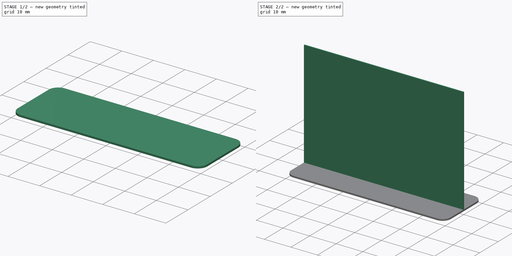
[diagram: build sequence overview — one tinted view per stage of 2, left to right]
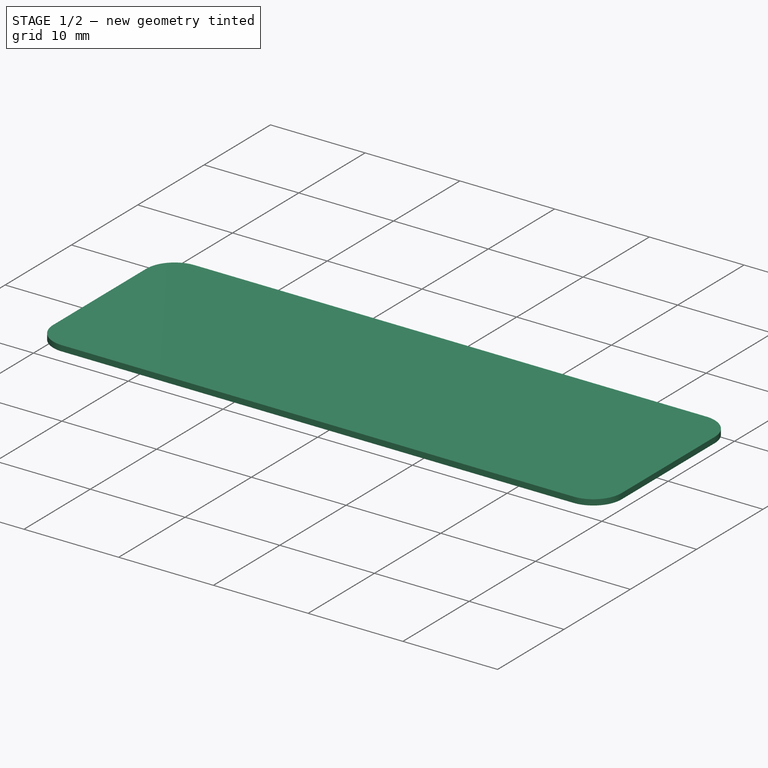
[diagram: stage 1 of 2 — iso view after this stage's code; geometry added in this stage tinted green]
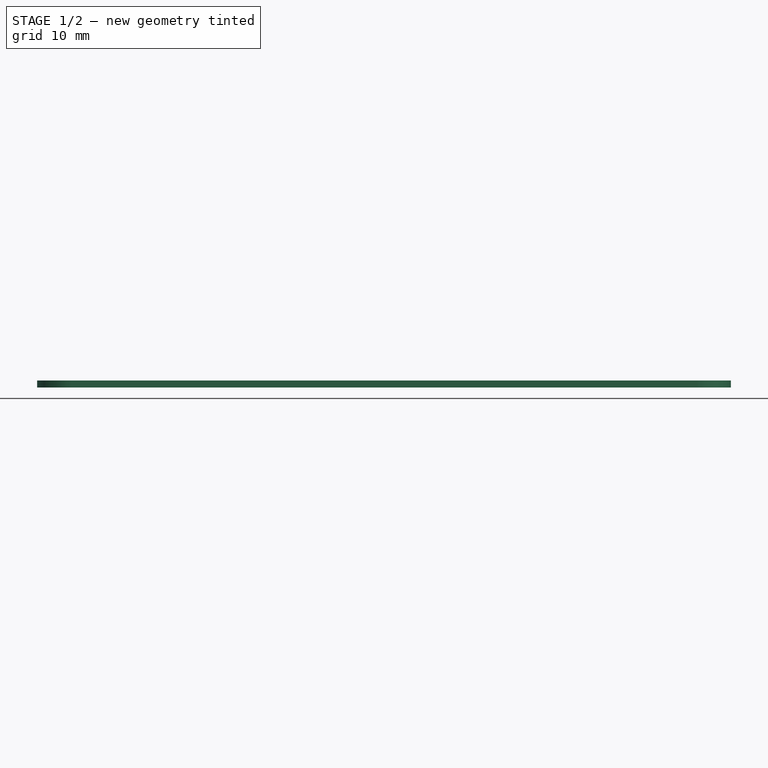
[diagram: stage 1 of 2 — front view after this stage's code; geometry added in this stage tinted green]
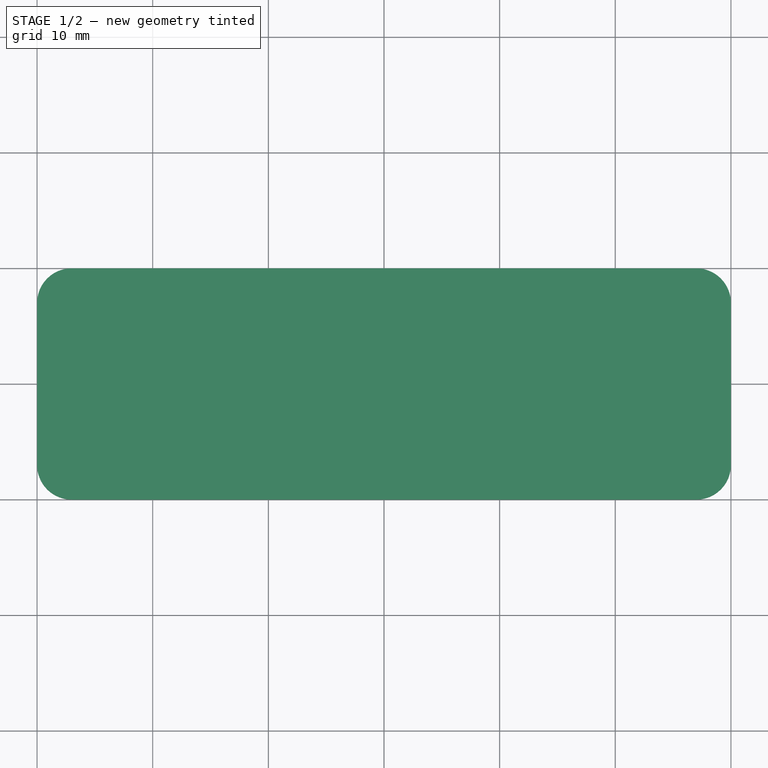
[diagram: stage 1 of 2 — top view after this stage's code; geometry added in this stage tinted green]
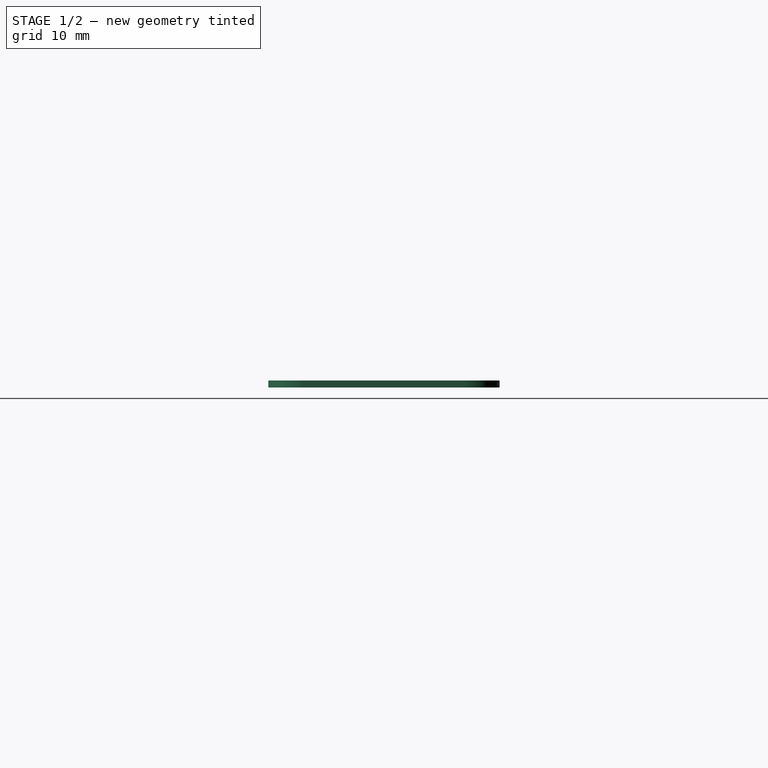
[diagram: stage 1 of 2 — right view after this stage's code; geometry added in this stage tinted green]
FCSTD DOCUMENT  (FreeCAD 0.18.2R)
Label: zbandingtest
License: All rights reserved
LicenseURL: http://en.wikipedia.org/wiki/All_rights_reserved
objects: Sketcher::SketchObject×2, PartDesign::Pad×2, PartDesign::Body×1, App::Part×1
note: 7 computed .brp shape members not serialized (recipe doc carries the construction recipe); baked Part::Feature solids carry a one-line shape summary decoded from their .brp

FEATURE [Sketcher::SketchObject] Sketch
  MapMode = 5
  Support = -> [XY_Plane001]
  sketch-geometry (10):
    g0: LineSegment StartX=-27 StartY=10 StartZ=0 EndX=27 EndY=10 EndZ=0
    g1: LineSegment StartX=30 StartY=7 StartZ=0 EndX=30 EndY=-7 EndZ=0
    g2: LineSegment StartX=27 StartY=-10 StartZ=0 EndX=-27 EndY=-10 EndZ=0
    g3: LineSegment StartX=-30 StartY=-7 StartZ=0 EndX=-30 EndY=7 EndZ=0
    g4: ArcOfCircle CenterX=-27 CenterY=7 CenterZ=0 NormalX=0 NormalY=0 NormalZ=1 AngleXU=0 Radius=3 StartAngle=1.5708 EndAngle=3.14159
    g5: ArcOfCircle CenterX=-27 CenterY=-7 CenterZ=0 NormalX=0 NormalY=0 NormalZ=1 AngleXU=0 Radius=3 StartAngle=3.14159 EndAngle=4.71239
    g6: ArcOfCircle CenterX=27 CenterY=-7 CenterZ=0 NormalX=0 NormalY=0 NormalZ=1 AngleXU=0 Radius=3 StartAngle=4.71239 EndAngle=6.28319
    g7: ArcOfCircle CenterX=27 CenterY=7 CenterZ=0 NormalX=0 NormalY=0 NormalZ=1 AngleXU=0 Radius=3 StartAngle=0 EndAngle=1.5708
    g8: LineSegment [constr] StartX=-30 StartY=0.2 StartZ=0 EndX=30 EndY=0.2 EndZ=0
    g9: LineSegment [constr] StartX=-30 StartY=-0.2 StartZ=0 EndX=30 EndY=-0.2 EndZ=0
  constraints (25):
    c: Horizontal(g0)
    c: Horizontal(g2)
    c: Vertical(g1)
    c: Vertical(g3)
    c: Tangent(g0,g4) = 1.5708
    c: Tangent(g3,g4) = 1.5708
    c: Tangent(g2,g5) = 1.5708
    c: Tangent(g3,g5) = 1.5708
    c: Tangent(g1,g6) = 1.5708
    c: Tangent(g2,g6) = 1.5708
    c: Tangent(g0,g7) = 1.5708
    c: Tangent(g1,g7) = 1.5708
    c: Equal(g4,g7)
    c: DistanceX(g3,g1) = 60
    c: DistanceY(g2,g0) = 20
    c: Symmetric(g4,g5,g-1)
    c: Symmetric(g5,g6,g-2)
    c: Radius(g6) = 3
    c: PointOnObject(g8,g3)
    c: PointOnObject(g8,g1)
    c: Horizontal(g8)
    c: PointOnObject(g9,g3)
    c: Horizontal(g9)
    c: Symmetric(g8,g9,g-1)
    c: DistanceY(g9,g8) = 0.4
FEATURE [PartDesign::Pad] Pad
  Length = 0.6
  Length2 = 100
  Profile = -> Sketch
  Type = 0
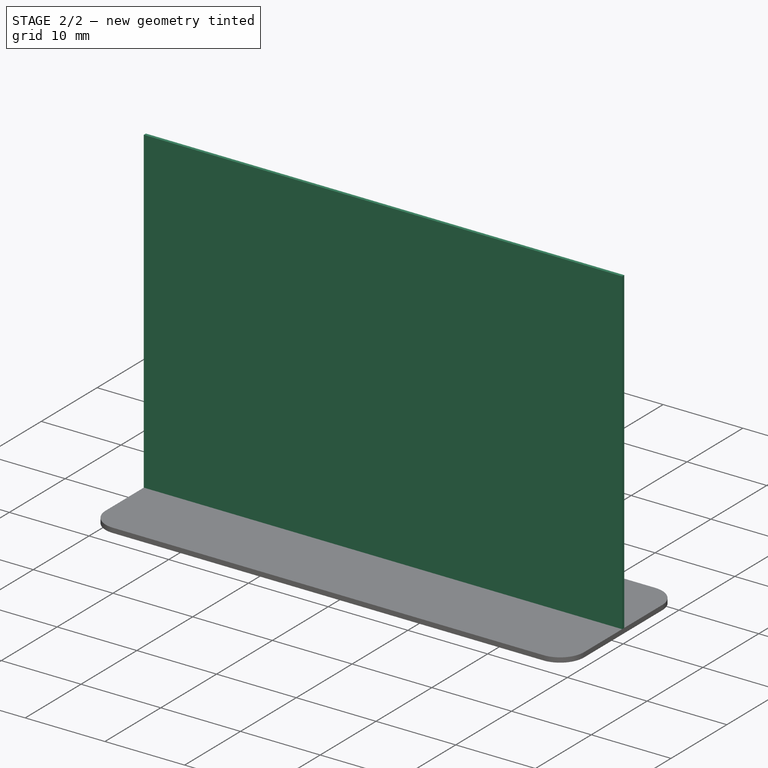
[diagram: stage 2 of 2 — iso view after this stage's code; geometry added in this stage tinted green]
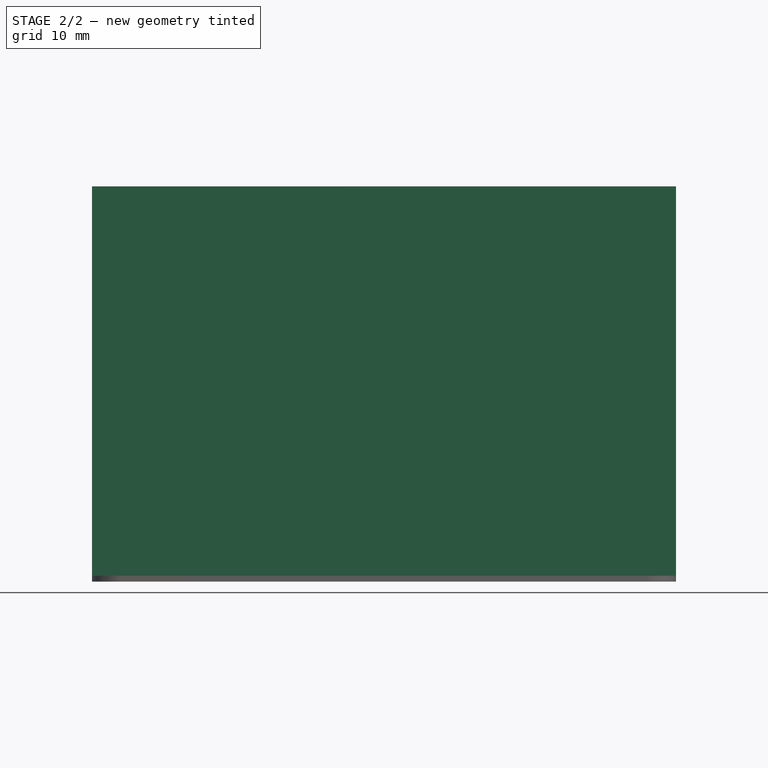
[diagram: stage 2 of 2 — front view after this stage's code; geometry added in this stage tinted green]
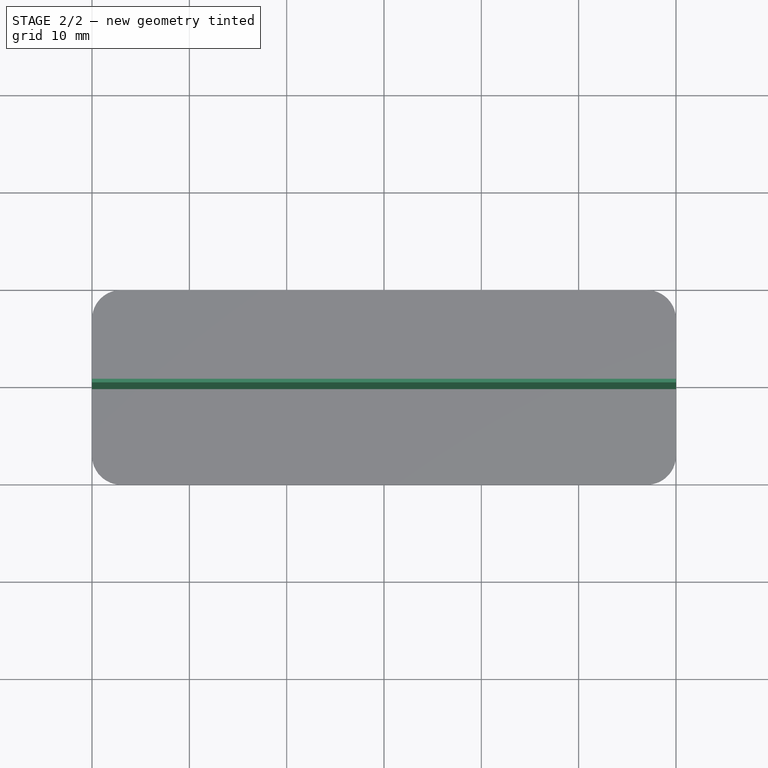
[diagram: stage 2 of 2 — top view after this stage's code; geometry added in this stage tinted green]
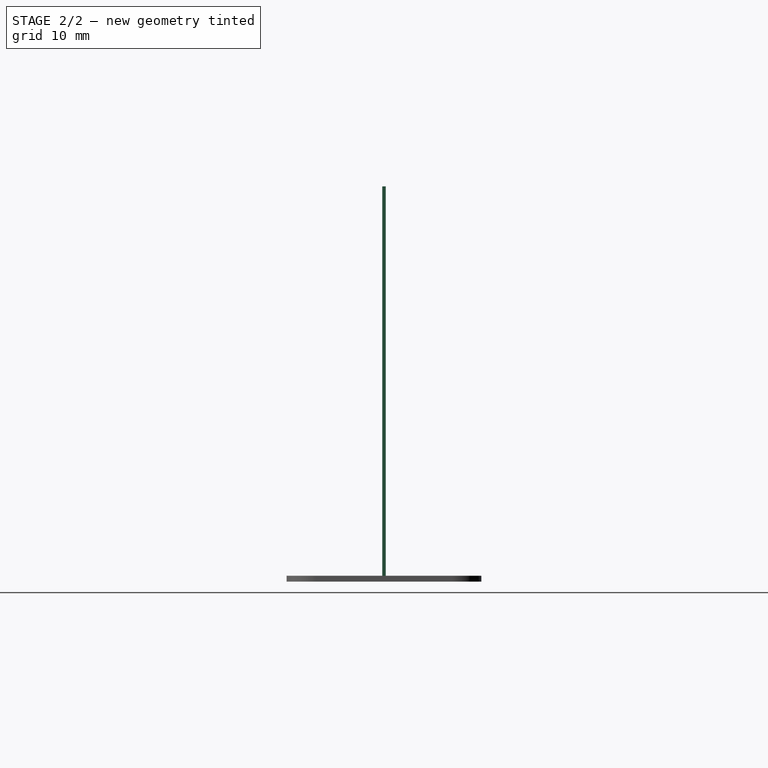
[diagram: stage 2 of 2 — right view after this stage's code; geometry added in this stage tinted green]
FEATURE [Sketcher::SketchObject] Sketch001
  AttachmentOffset = pos=(0,0,0.6) rot=(0,0,1;0rad)
  MapMode = 5
  Placement = pos=(0,0,0.6) rot=(0,0,1;0rad)
  Support = -> [XY_Plane001]
  expr: AttachmentOffset.Base.z = Pad.Length
  sketch-geometry (12):
    g0: LineSegment [constr] StartX=-27 StartY=10 StartZ=0 EndX=27 EndY=10 EndZ=0
    g1: LineSegment [constr] StartX=30 StartY=7 StartZ=0 EndX=30 EndY=-7 EndZ=0
    g2: LineSegment [constr] StartX=27 StartY=-10 StartZ=0 EndX=-27 EndY=-10 EndZ=0
    g3: LineSegment [constr] StartX=-30 StartY=-7 StartZ=0 EndX=-30 EndY=7 EndZ=0
    g4: ArcOfCircle [constr] CenterX=-27 CenterY=7 CenterZ=0 NormalX=0 NormalY=0 NormalZ=1 AngleXU=0 Radius=3 StartAngle=1.5708 EndAngle=3.14159
    g5: ArcOfCircle [constr] CenterX=-27 CenterY=-7 CenterZ=0 NormalX=0 NormalY=0 NormalZ=1 AngleXU=0 Radius=3 StartAngle=3.14159 EndAngle=4.71239
    g6: ArcOfCircle [constr] CenterX=27 CenterY=-7 CenterZ=0 NormalX=0 NormalY=0 NormalZ=1 AngleXU=0 Radius=3 StartAngle=4.71239 EndAngle=6.28319
    g7: ArcOfCircle [constr] CenterX=27 CenterY=7 CenterZ=0 NormalX=0 NormalY=0 NormalZ=1 AngleXU=0 Radius=3 StartAngle=0 EndAngle=1.5708
    g8: LineSegment StartX=-30 StartY=0.185 StartZ=0 EndX=30 EndY=0.185 EndZ=0
    g9: LineSegment StartX=-30 StartY=-0.185 StartZ=0 EndX=30 EndY=-0.185 EndZ=0
    g10: LineSegment StartX=-30 StartY=0.185 StartZ=0 EndX=-30 EndY=-0.185 EndZ=0
    g11: LineSegment StartX=30 StartY=0.185 StartZ=0 EndX=30 EndY=-0.185 EndZ=0
  constraints (29):
    c: Horizontal(g0)
    c: Horizontal(g2)
    c: Vertical(g1)
    c: Vertical(g3)
    c: Tangent(g0,g4) = 1.5708
    c: Tangent(g3,g4) = 1.5708
    c: Tangent(g2,g5) = 1.5708
    c: Tangent(g3,g5) = 1.5708
    c: Tangent(g1,g6) = 1.5708
    c: Tangent(g2,g6) = 1.5708
    c: Tangent(g0,g7) = 1.5708
    c: Tangent(g1,g7) = 1.5708
    c: Equal(g4,g7)
    c: DistanceX(g3,g1) = 60
    c: DistanceY(g2,g0) = 20
    c: Symmetric(g4,g5,g-1)
    c: Symmetric(g5,g6,g-2)
    c: Radius(g6) = 3
    c: PointOnObject(g8,g3)
    c: PointOnObject(g8,g1)
    c: Horizontal(g8)
    c: PointOnObject(g9,g3)
    c: Horizontal(g9)
    c: Symmetric(g8,g9,g-1)
    c: DistanceY(g9,g8) = 0.37
    c: Coincident(g10,g8)
    c: Coincident(g10,g9)
    c: Coincident(g11,g8)
    c: Coincident(g11,g9)
FEATURE [PartDesign::Pad] Pad001
  BaseFeature = -> Pad
  Length = 40
  Length2 = 100
  Profile = -> Sketch001
  Type = 0
FEATURE [PartDesign::Body] Body
  Group = -> [Sketch,Pad,Sketch001,Pad001]
  Origin = -> Origin001
  Tip = -> Pad001
FEATURE [App::Part] Part
  Group = -> [Body]
  Origin = -> Origin
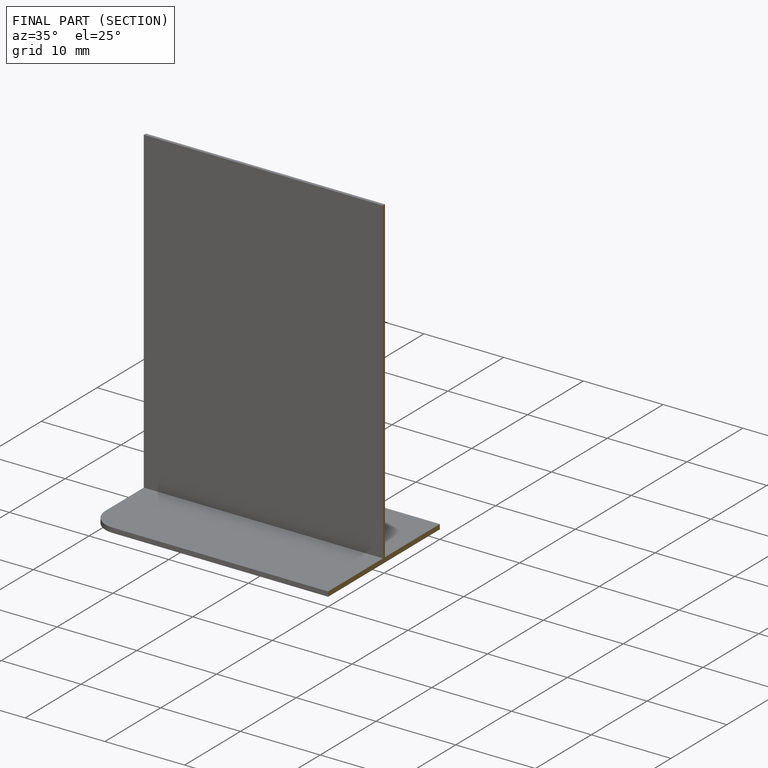
[diagram: finished part — half-section view (interior)]
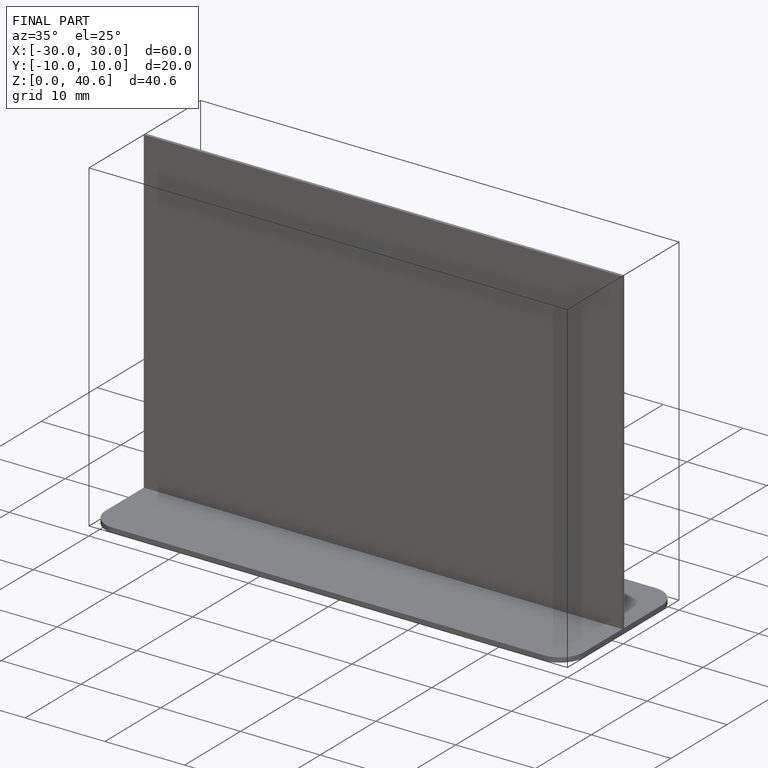
[diagram: finished part — iso view with bounding-box wireframe]
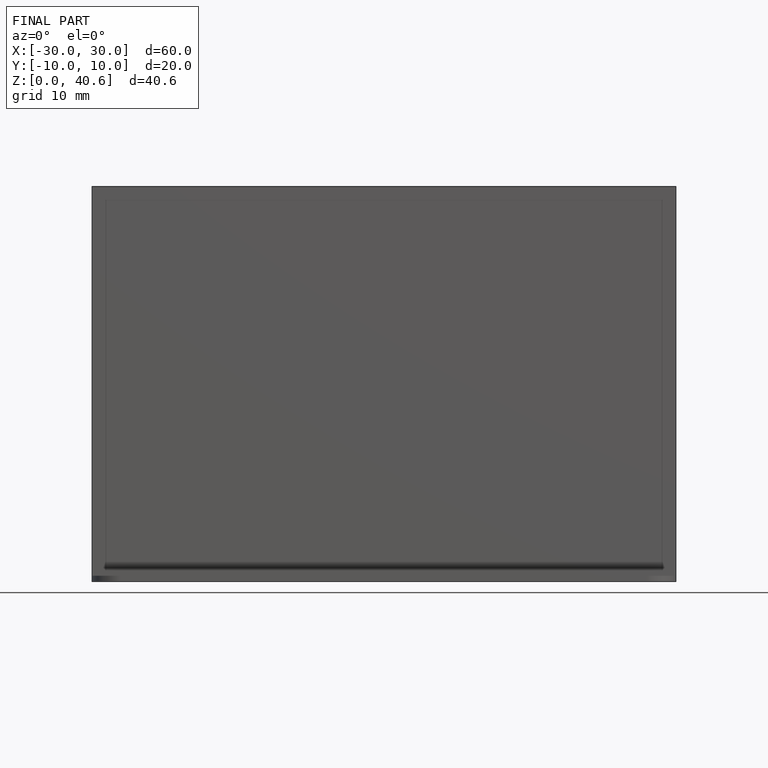
[diagram: finished part — front view with bounding-box wireframe]
